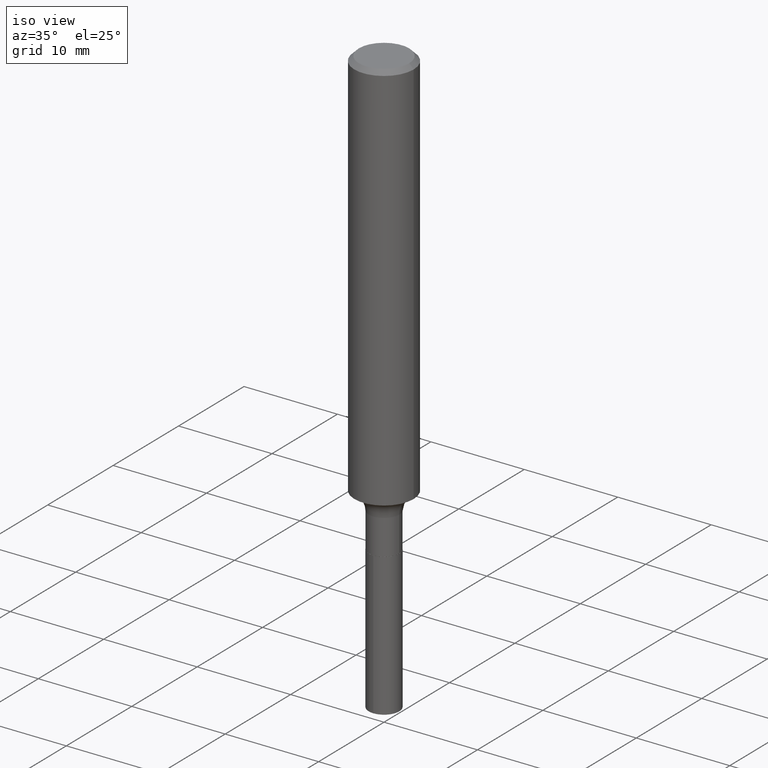
[diagram: clean part render]
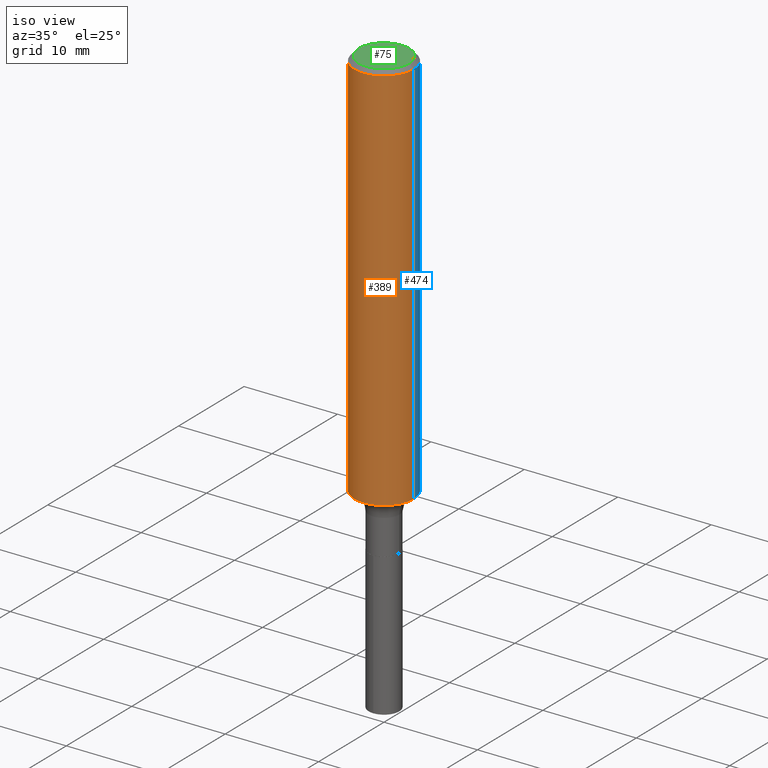
[diagram: same view with three faces highlighted in distinct colors, each labeled with its STEP entity id]
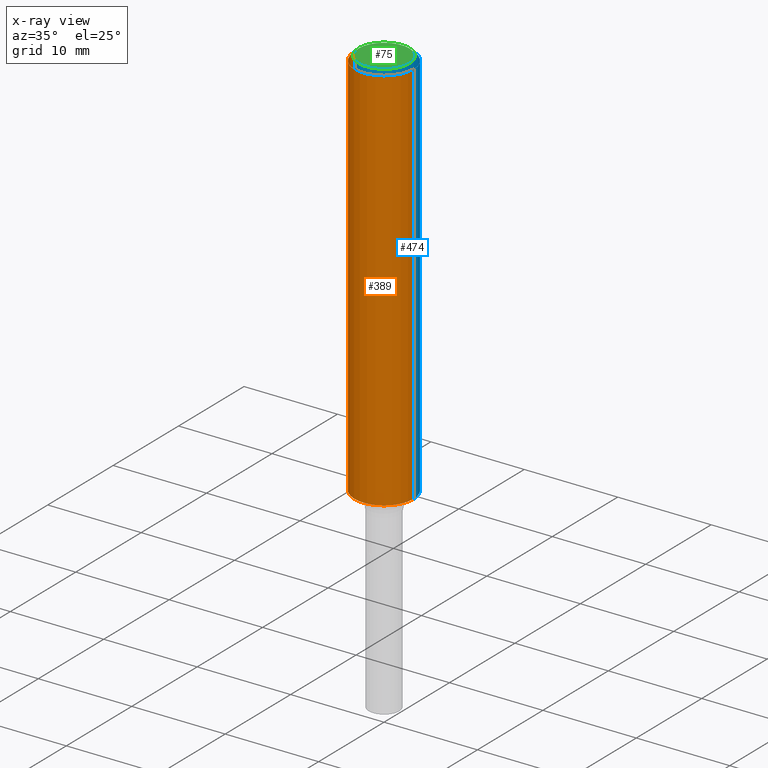
[diagram: x-ray of the same camera — body ghosted, the three highlighted faces saturated]
A machine part, iso view with three faces highlighted in distinct colors.
The next image is the same camera in x-ray (body ghosted, the three faces saturated) — at least one of them is partly hidden behind the body in this view.
Their STEP definitions:

[orange] entity #389 — the highlighted cylindrical surface (edge-blend (fillet) strip) has radius 3.175 mm, axis along (-0, 0, 1).
#7 = CARTESIAN_POINT ( 'NONE',  ( 0.000000000000000000, 0.000000000000000000, 0.000000000000000000 ) ) ;
#9 = CARTESIAN_POINT ( 'NONE',  ( -0.1250000000000001110, 8.881784197001260212E-16, -6.148668862818637832E-30 ) ) ;
#12 = EDGE_CURVE ( 'NONE', #311, #251, #222, .T. ) ;
#23 = ORIENTED_EDGE ( 'NONE', *, *, #12, .T. ) ;
#28 = CARTESIAN_POINT ( 'NONE',  ( 4.046349384515295800E-29, -5.777114527383200552E-15, -1.654631363230303576 ) ) ;
#49 = EDGE_CURVE ( 'NONE', #482, #224, #478, .T. ) ;
#57 = DIRECTION ( 'NONE',  ( -2.445468806185136877E-29, 3.491481338843145188E-15, 1.000000000000000000 ) ) ;
#81 = AXIS2_PLACEMENT_3D ( 'NONE', #254, #300, #449 ) ;
#89 = VECTOR ( 'NONE', #232, 39.37007874015748143 ) ;
#100 = ORIENTED_EDGE ( 'NONE', *, *, #49, .F. ) ;
#117 = CYLINDRICAL_SURFACE ( 'NONE', #155, 0.1250000000000001110 ) ;
#135 = LINE ( 'NONE', #284, #200 ) ;
#154 = CARTESIAN_POINT ( 'NONE',  ( 0.1250000000000000000, -9.383356098140928781E-16, -0.01875000000000014502 ) ) ;
#155 = AXIS2_PLACEMENT_3D ( 'NONE', #7, #423, #312 ) ;
#190 = DIRECTION ( 'NONE',  ( -2.445468806185136597E-29, 3.491481338843145583E-15, 1.000000000000000000 ) ) ;
#200 = VECTOR ( 'NONE', #57, 39.37007874015748143 ) ;
#222 = CIRCLE ( 'NONE', #329, 0.1250000000000001943 ) ;
#224 = VERTEX_POINT ( 'NONE', #154 ) ;
#232 = DIRECTION ( 'NONE',  ( -2.445468806185136877E-29, 3.491481338843145188E-15, 1.000000000000000000 ) ) ;
#251 = VERTEX_POINT ( 'NONE', #418 ) ;
#254 = CARTESIAN_POINT ( 'NONE',  ( 4.585254011597165626E-31, -6.546527510330948997E-17, -0.01875000000000014502 ) ) ;
#265 = DIRECTION ( 'NONE',  ( 1.000000000000000000, -6.982962677686267499E-15, 0.000000000000000000 ) ) ;
#284 = CARTESIAN_POINT ( 'NONE',  ( 0.1250000000000001110, -8.728703347107841277E-16, 6.095220969744924646E-30 ) ) ;
#300 = DIRECTION ( 'NONE',  ( -2.445468806185136597E-29, 3.491481338843145583E-15, 1.000000000000000000 ) ) ;
#304 = EDGE_CURVE ( 'NONE', #251, #224, #135, .T. ) ;
#311 = VERTEX_POINT ( 'NONE', #336 ) ;
#312 = DIRECTION ( 'NONE',  ( 1.000000000000000000, -6.982962677686266711E-15, 4.876176775795935232E-29 ) ) ;
#329 = AXIS2_PLACEMENT_3D ( 'NONE', #28, #190, #265 ) ;
#336 = CARTESIAN_POINT ( 'NONE',  ( -0.1250000000000003053, -4.888936107683072164E-15, -1.654631363230303576 ) ) ;
#338 = EDGE_CURVE ( 'NONE', #311, #482, #462, .T. ) ;
#389 = ADVANCED_FACE ( 'NONE', ( #390 ), #117, .T. ) ;
#390 = FACE_OUTER_BOUND ( 'NONE', #484, .T. ) ;
#405 = ORIENTED_EDGE ( 'NONE', *, *, #338, .F. ) ;
#408 = ORIENTED_EDGE ( 'NONE', *, *, #304, .T. ) ;
#418 = CARTESIAN_POINT ( 'NONE',  ( 0.1250000000000003053, -6.649984862093984679E-15, -1.654631363230303576 ) ) ;
#421 = CARTESIAN_POINT ( 'NONE',  ( -0.1250000000000000000, -2.033111481543127644E-15, -0.01875000000000014502 ) ) ;
#423 = DIRECTION ( 'NONE',  ( -2.445468806185136597E-29, 3.491481338843145583E-15, 1.000000000000000000 ) ) ;
#449 = DIRECTION ( 'NONE',  ( 1.000000000000000000, -6.982962677686266711E-15, 0.000000000000000000 ) ) ;
#462 = LINE ( 'NONE', #9, #89 ) ;
#478 = CIRCLE ( 'NONE', #81, 0.1250000000000000000 ) ;
#482 = VERTEX_POINT ( 'NONE', #421 ) ;
#484 = EDGE_LOOP ( 'NONE', ( #405, #23, #408, #100 ) ) ;

[blue] entity #474 — the highlighted cylindrical surface (edge-blend (fillet) strip) has radius 3.175 mm, axis along (-0, 0, 1).
#9 = CARTESIAN_POINT ( 'NONE',  ( -0.1250000000000001110, 8.881784197001260212E-16, -6.148668862818637832E-30 ) ) ;
#31 = FACE_OUTER_BOUND ( 'NONE', #437, .T. ) ;
#47 = AXIS2_PLACEMENT_3D ( 'NONE', #339, #485, #147 ) ;
#57 = DIRECTION ( 'NONE',  ( -2.445468806185136877E-29, 3.491481338843145188E-15, 1.000000000000000000 ) ) ;
#64 = EDGE_CURVE ( 'NONE', #251, #311, #424, .T. ) ;
#89 = VECTOR ( 'NONE', #232, 39.37007874015748143 ) ;
#93 = EDGE_CURVE ( 'NONE', #224, #482, #470, .T. ) ;
#99 = ORIENTED_EDGE ( 'NONE', *, *, #338, .T. ) ;
#111 = AXIS2_PLACEMENT_3D ( 'NONE', #490, #150, #114 ) ;
#114 = DIRECTION ( 'NONE',  ( 1.000000000000000000, -6.982962677686266711E-15, 0.000000000000000000 ) ) ;
#131 = ORIENTED_EDGE ( 'NONE', *, *, #64, .T. ) ;
#135 = LINE ( 'NONE', #284, #200 ) ;
#146 = AXIS2_PLACEMENT_3D ( 'NONE', #341, #489, #308 ) ;
#147 = DIRECTION ( 'NONE',  ( 1.000000000000000000, -6.982962677686267499E-15, 0.000000000000000000 ) ) ;
#150 = DIRECTION ( 'NONE',  ( -2.445468806185136597E-29, 3.491481338843145583E-15, 1.000000000000000000 ) ) ;
#154 = CARTESIAN_POINT ( 'NONE',  ( 0.1250000000000000000, -9.383356098140928781E-16, -0.01875000000000014502 ) ) ;
#167 = ORIENTED_EDGE ( 'NONE', *, *, #93, .F. ) ;
#184 = CYLINDRICAL_SURFACE ( 'NONE', #146, 0.1250000000000001110 ) ;
#200 = VECTOR ( 'NONE', #57, 39.37007874015748143 ) ;
#224 = VERTEX_POINT ( 'NONE', #154 ) ;
#232 = DIRECTION ( 'NONE',  ( -2.445468806185136877E-29, 3.491481338843145188E-15, 1.000000000000000000 ) ) ;
#251 = VERTEX_POINT ( 'NONE', #418 ) ;
#284 = CARTESIAN_POINT ( 'NONE',  ( 0.1250000000000001110, -8.728703347107841277E-16, 6.095220969744924646E-30 ) ) ;
#304 = EDGE_CURVE ( 'NONE', #251, #224, #135, .T. ) ;
#308 = DIRECTION ( 'NONE',  ( 1.000000000000000000, -6.982962677686266711E-15, 4.876176775795935232E-29 ) ) ;
#311 = VERTEX_POINT ( 'NONE', #336 ) ;
#336 = CARTESIAN_POINT ( 'NONE',  ( -0.1250000000000003053, -4.888936107683072164E-15, -1.654631363230303576 ) ) ;
#338 = EDGE_CURVE ( 'NONE', #311, #482, #462, .T. ) ;
#339 = CARTESIAN_POINT ( 'NONE',  ( 4.046349384515295800E-29, -5.777114527383200552E-15, -1.654631363230303576 ) ) ;
#341 = CARTESIAN_POINT ( 'NONE',  ( 0.000000000000000000, 0.000000000000000000, 0.000000000000000000 ) ) ;
#418 = CARTESIAN_POINT ( 'NONE',  ( 0.1250000000000003053, -6.649984862093984679E-15, -1.654631363230303576 ) ) ;
#421 = CARTESIAN_POINT ( 'NONE',  ( -0.1250000000000000000, -2.033111481543127644E-15, -0.01875000000000014502 ) ) ;
#424 = CIRCLE ( 'NONE', #47, 0.1250000000000001943 ) ;
#437 = EDGE_LOOP ( 'NONE', ( #131, #99, #167, #463 ) ) ;
#462 = LINE ( 'NONE', #9, #89 ) ;
#463 = ORIENTED_EDGE ( 'NONE', *, *, #304, .F. ) ;
#470 = CIRCLE ( 'NONE', #111, 0.1250000000000000000 ) ;
#474 = ADVANCED_FACE ( 'NONE', ( #31 ), #184, .T. ) ;
#482 = VERTEX_POINT ( 'NONE', #421 ) ;
#485 = DIRECTION ( 'NONE',  ( -2.445468806185136597E-29, 3.491481338843145583E-15, 1.000000000000000000 ) ) ;
#489 = DIRECTION ( 'NONE',  ( -2.445468806185136597E-29, 3.491481338843145583E-15, 1.000000000000000000 ) ) ;
#490 = CARTESIAN_POINT ( 'NONE',  ( 4.585254011597165626E-31, -6.546527510330948997E-17, -0.01875000000000014502 ) ) ;

[green] entity #75 — the highlighted planar face has unit normal (0, -0, -1).
#6 = DIRECTION ( 'NONE',  ( -2.445468806185136597E-29, 3.491481338843145583E-15, 1.000000000000000000 ) ) ;
#11 = AXIS2_PLACEMENT_3D ( 'NONE', #235, #6, #391 ) ;
#27 = DIRECTION ( 'NONE',  ( 1.000000000000000000, -6.982962677686266711E-15, 4.876153107228683844E-29 ) ) ;
#29 = EDGE_CURVE ( 'NONE', #396, #369, #168, .T. ) ;
#35 = CARTESIAN_POINT ( 'NONE',  ( -8.782355238379108562E-48, 1.253887571509288664E-33, 3.591276738499616421E-19 ) ) ;
#75 = ADVANCED_FACE ( 'NONE', ( #348 ), #381, .F. ) ;
#102 = AXIS2_PLACEMENT_3D ( 'NONE', #103, #383, #27 ) ;
#103 = CARTESIAN_POINT ( 'NONE',  ( -1.756471047675821712E-47, 2.507775143018577328E-33, 7.182553476999232843E-19 ) ) ;
#108 = DIRECTION ( 'NONE',  ( 2.438088387897960049E-29, -3.491481338843145188E-15, -1.000000000000000000 ) ) ;
#159 = CARTESIAN_POINT ( 'NONE',  ( -0.1062499999999999972, 7.746724220558198188E-16, 7.182553476946202362E-19 ) ) ;
#168 = CIRCLE ( 'NONE', #102, 0.1062499999999999972 ) ;
#235 = CARTESIAN_POINT ( 'NONE',  ( -1.756471047675821712E-47, 2.507775143018577328E-33, 7.182553476999232843E-19 ) ) ;
#252 = ORIENTED_EDGE ( 'NONE', *, *, #407, .T. ) ;
#269 = CARTESIAN_POINT ( 'NONE',  ( 0.1062499999999999972, -8.259777185439879685E-16, 7.182553477054055401E-19 ) ) ;
#320 = AXIS2_PLACEMENT_3D ( 'NONE', #35, #108, #447 ) ;
#348 = FACE_OUTER_BOUND ( 'NONE', #439, .T. ) ;
#369 = VERTEX_POINT ( 'NONE', #269 ) ;
#378 = CIRCLE ( 'NONE', #11, 0.1062499999999999972 ) ;
#381 = PLANE ( 'NONE',  #320 ) ;
#383 = DIRECTION ( 'NONE',  ( -2.445468806185136597E-29, 3.491481338843145583E-15, 1.000000000000000000 ) ) ;
#391 = DIRECTION ( 'NONE',  ( 1.000000000000000000, -6.982962677686266711E-15, 4.876153107228683844E-29 ) ) ;
#396 = VERTEX_POINT ( 'NONE', #159 ) ;
#407 = EDGE_CURVE ( 'NONE', #369, #396, #378, .T. ) ;
#439 = EDGE_LOOP ( 'NONE', ( #444, #252 ) ) ;
#444 = ORIENTED_EDGE ( 'NONE', *, *, #29, .T. ) ;
#447 = DIRECTION ( 'NONE',  ( -1.000000000000000000, 6.982962677686265922E-15, -4.876176775795935793E-29 ) ) ;